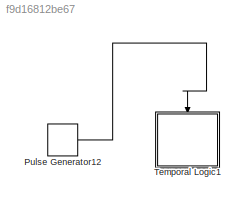
MODEL slx_f9d16812be67
KIND model
CONFIG AbsTol = auto
CONFIG EnableMultiTasking = off
CONFIG FixedStep = auto
CONFIG MaxStep = auto
CONFIG MinStep = auto
CONFIG RelTol = 1e-3
CONFIG SampleTimeConstraint = Unconstrained
CONFIG Solver = VariableStepAuto
CONFIG SolverName = VariableStepAuto
CONFIG StartTime = 0.0
CONFIG StopTime = 10.0
BLOCK [DiscretePulseGenerator] Pulse Generator12
  Period = 1
  Ports = [0, 1]
  PulseType = Time based
  PulseWidth = 50
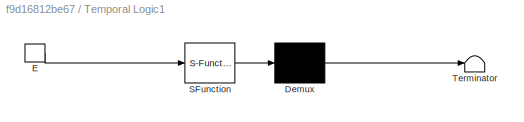
BLOCK [SubSystem] Temporal Logic1
  ErrorFcn = Stateflow.Translate.translate
  PermitHierarchicalResolution = ExplicitOnly
  Ports = [0, 0, 0, 1]
  RequestExecContextInheritance = off
  SFBlockType = Chart
  TreatAsAtomicUnit = on
BLOCK [Demux] Temporal Logic1/ Demux 
  Outputs = 1
  Ports = [1, 1]
BLOCK [S-Function] Temporal Logic1/ SFunction 
  EnableBusSupport = on
  FunctionName = sf_sfun
  PortCounts = [1 1]
  Ports = [1, 1]
  SFcnIsStateOwnerBlock = off
  SFunctionDeploymentMode = off
  Tag = Stateflow S-Function 35
BLOCK [Terminator] Temporal Logic1/ Terminator 
BLOCK [TriggerPort] Temporal Logic1/E
  Ports = [0, 1]
  ShowOutputPort = on
  StatesWhenEnabling = held
  TriggerType = either
  VariantControl = (inherit)
LINE Pulse Generator12:1 -> Temporal Logic1:trigger
CHART Temporal Logic1 states=3 transitions=6
  STATE_LABEL 'A\ndu: x = 2;\nex:x = 1;\non at(2,E): x = x-3;\non every(1,E): x = x+1;'
  STATE_LABEL 'A1\nex:x = temporalCount(E);'
  STATE_LABEL 'A1\nex:x = temporalCount(E);'
  STATE_LABEL 'B\nen: x=x+1;'
CHART  states=0 transitions=0
